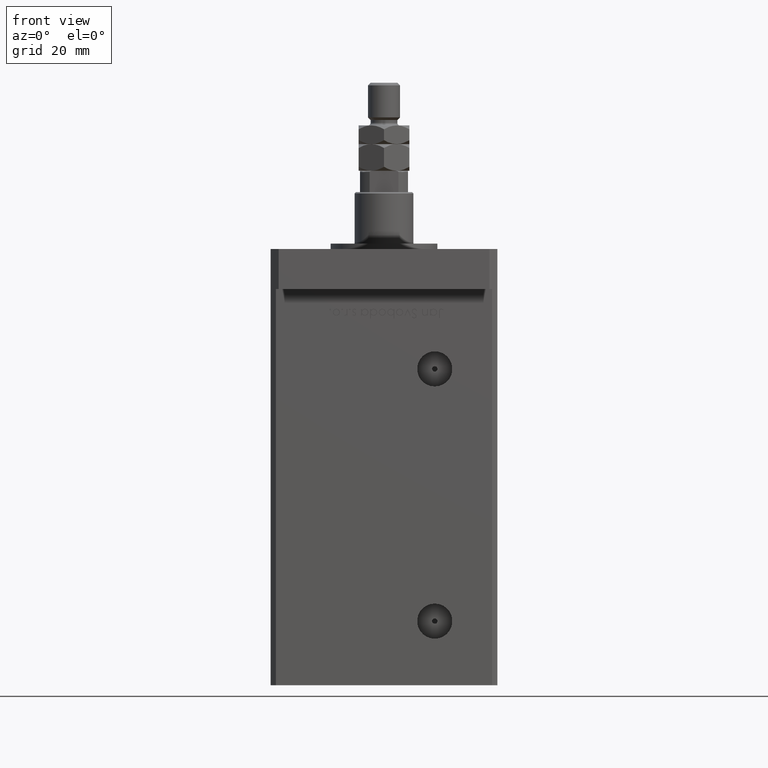
[diagram: clean part render]
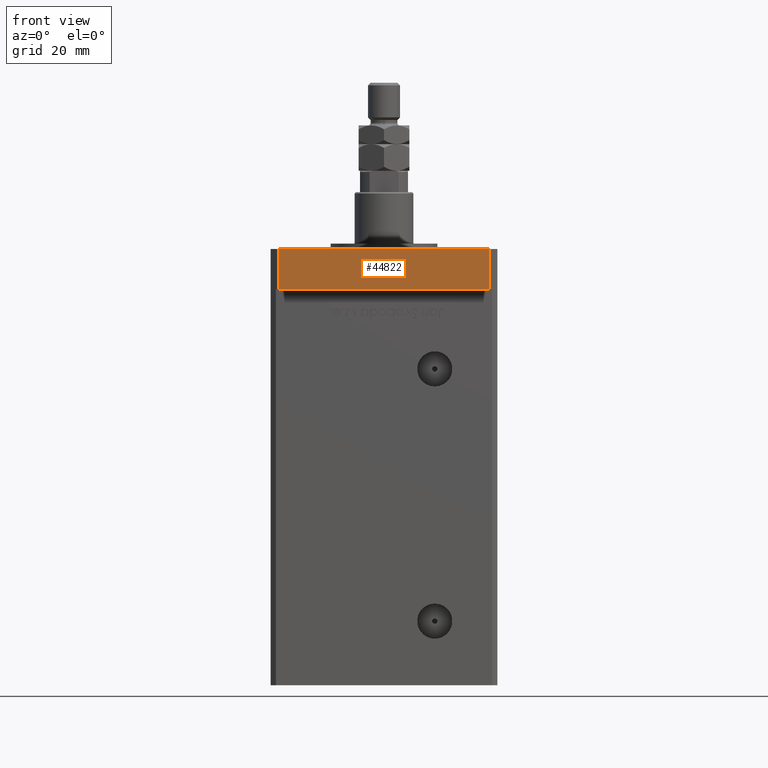
[diagram: same view with one face highlighted and labeled with its STEP entity id]
A machine part, front view. The second image highlights one B-rep face of the part: STEP entity #44822.
In plain terms, the highlighted planar face has unit normal (-0, 1, 0).
Its self-contained STEP definition (entity closure, byte-faithful):
#627 = EDGE_LOOP ( 'NONE', ( #43542, #53319, #17601, #41812 ) ) ;
#2053 = VERTEX_POINT ( 'NONE', #6752 ) ;
#5615 = DIRECTION ( 'NONE',  ( -0.000000000000000000, -0.000000000000000000, -1.000000000000000000 ) ) ;
#5788 = CARTESIAN_POINT ( 'NONE',  ( -39.50000000000000000, -65.00000000000000000, 15.00000000000000000 ) ) ;
#5900 = LINE ( 'NONE', #26845, #37187 ) ;
#6285 = EDGE_CURVE ( 'NONE', #12628, #31311, #38611, .T. ) ;
#6458 = CARTESIAN_POINT ( 'NONE',  ( 39.50000000000001421, -64.99999999999988631, 15.00000000000000000 ) ) ;
#6498 = CARTESIAN_POINT ( 'NONE',  ( -39.50000000000000000, -65.00000000000000000, 0.000000000000000000 ) ) ;
#6752 = CARTESIAN_POINT ( 'NONE',  ( 39.50000000000001421, -64.99999999999988631, 0.000000000000000000 ) ) ;
#7113 = DIRECTION ( 'NONE',  ( -1.000000000000000000, -1.405345600791337191E-15, 0.000000000000000000 ) ) ;
#10171 = VECTOR ( 'NONE', #13207, 1000.000000000000000 ) ;
#11783 = EDGE_CURVE ( 'NONE', #31311, #2053, #35820, .T. ) ;
#12628 = VERTEX_POINT ( 'NONE', #55117 ) ;
#13041 = VECTOR ( 'NONE', #36639, 1000.000000000000000 ) ;
#13207 = DIRECTION ( 'NONE',  ( -0.000000000000000000, -0.000000000000000000, -1.000000000000000000 ) ) ;
#17601 = ORIENTED_EDGE ( 'NONE', *, *, #55005, .F. ) ;
#19205 = EDGE_CURVE ( 'NONE', #21707, #2053, #5900, .T. ) ;
#19443 = DIRECTION ( 'NONE',  ( 1.000000000000000000, 1.405345600791337191E-15, 0.000000000000000000 ) ) ;
#21707 = VERTEX_POINT ( 'NONE', #6458 ) ;
#24438 = FACE_OUTER_BOUND ( 'NONE', #627, .T. ) ;
#26845 = CARTESIAN_POINT ( 'NONE',  ( 39.50000000000001421, -64.99999999999988631, 15.00000000000000000 ) ) ;
#28614 = CARTESIAN_POINT ( 'NONE',  ( -39.50000000000000000, -65.00000000000000000, 15.00000000000000000 ) ) ;
#31311 = VERTEX_POINT ( 'NONE', #32189 ) ;
#32189 = CARTESIAN_POINT ( 'NONE',  ( -39.50000000000000000, -65.00000000000000000, 0.000000000000000000 ) ) ;
#35820 = LINE ( 'NONE', #6498, #13041 ) ;
#36639 = DIRECTION ( 'NONE',  ( 1.000000000000000000, 1.405345600791337191E-15, 0.000000000000000000 ) ) ;
#37187 = VECTOR ( 'NONE', #5615, 1000.000000000000000 ) ;
#38611 = LINE ( 'NONE', #46979, #10171 ) ;
#40402 = LINE ( 'NONE', #5788, #53021 ) ;
#41812 = ORIENTED_EDGE ( 'NONE', *, *, #6285, .T. ) ;
#43542 = ORIENTED_EDGE ( 'NONE', *, *, #11783, .T. ) ;
#44822 = ADVANCED_FACE ( 'NONE', ( #24438 ), #45370, .F. ) ;
#45370 = PLANE ( 'NONE',  #53671 ) ;
#45644 = DIRECTION ( 'NONE',  ( -1.405345600791337191E-15, 1.000000000000000000, 0.000000000000000000 ) ) ;
#46979 = CARTESIAN_POINT ( 'NONE',  ( -39.50000000000000000, -65.00000000000000000, 15.00000000000000000 ) ) ;
#53021 = VECTOR ( 'NONE', #19443, 1000.000000000000000 ) ;
#53319 = ORIENTED_EDGE ( 'NONE', *, *, #19205, .F. ) ;
#53671 = AXIS2_PLACEMENT_3D ( 'NONE', #28614, #45644, #7113 ) ;
#55005 = EDGE_CURVE ( 'NONE', #12628, #21707, #40402, .T. ) ;
#55117 = CARTESIAN_POINT ( 'NONE',  ( -39.50000000000000000, -65.00000000000000000, 15.00000000000000000 ) ) ;